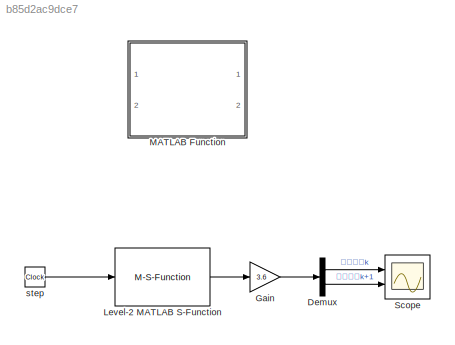
MODEL slx_b85d2ac9dce7
KIND model
CONFIG AbsTol = auto
CONFIG EnableMultiTasking = off
CONFIG FixedStep = 0.01
CONFIG MaxStep = auto
CONFIG MinStep = auto
CONFIG RelTol = 1e-3
CONFIG SampleTimeConstraint = Unconstrained
CONFIG Solver = ode14x
CONFIG SolverName = ode14x
CONFIG StartTime = 0.0
CONFIG StopTime = 500
BLOCK [Demux] Demux
  DisplayOption = bar
  Outputs = 2
  Ports = [1, 2]
BLOCK [Gain] Gain
  Gain = 3.6
  OutDataTypeStr = Inherit: Inherit via internal rule
  ParamDataTypeStr = Inherit: Inherit via internal rule
  SaturateOnIntegerOverflow = off
BLOCK [M-S-Function] Level-2 MATLAB S-Function
  FunctionName = msfun_test
  Ports = [1, 1]
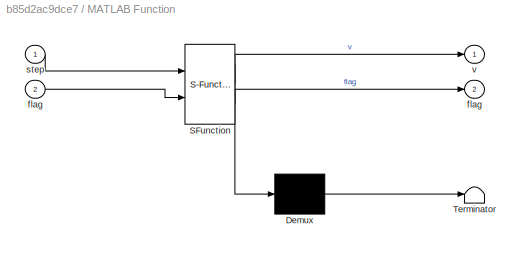
BLOCK [SubSystem] MATLAB Function
  Commented = on
  ErrorFcn = Stateflow.Translate.translate
  PermitHierarchicalResolution = ExplicitOnly
  Ports = [2, 2]
  RequestExecContextInheritance = off
  SFBlockType = MATLAB Function
  TreatAsAtomicUnit = on
BLOCK [Demux] MATLAB Function/ Demux 
  Outputs = 1
  Ports = [1, 1]
BLOCK [S-Function] MATLAB Function/ SFunction 
  EnableBusSupport = on
  FunctionName = sf_sfun
  PortCounts = [2 3]
  Ports = [2, 3]
  SFcnIsStateOwnerBlock = off
  SFunctionDeploymentMode = off
  Tag = Stateflow S-Function 2
BLOCK [Terminator] MATLAB Function/ Terminator 
BLOCK [Outport] MATLAB Function/flag
  IconDisplay = Port number
  Port = 2
BLOCK [Inport] MATLAB Function/flag 
  IconDisplay = Port number
  Port = 2
BLOCK [Inport] MATLAB Function/step
  IconDisplay = Port number
BLOCK [Outport] MATLAB Function/v
  IconDisplay = Port number
BLOCK [Scope] Scope
  Floating = off
  NumInputPorts = 2
  Ports = [2]
  ScopeSpecificationString = Simulink.scopes.TimeScopeBlockCfg('CurrentConfiguration', extmgr.ConfigurationSet(extmgr.Configuration('Core','General UI',true,'FigureColor',[1 1 1]),extmgr.Configuration('Core','Source UI',true),extmgr.Configuration('Sources','WiredSimulink',true),extmgr.Configuration('Visuals','Time Domain',true,'SerializedDisplays',{struct('MinYLimReal','-5.06786','MaxYLimReal','45.61075','YLabelReal','','MinY...<+1625ch>
BLOCK [Clock] step
LINE Demux:1 -> Scope:1
LINE Demux:2 -> Scope:2
LINE Gain:1 -> Demux:1
LINE Level-2 MATLAB S-Function:1 -> Gain:1
LINE step:1 -> Level-2 MATLAB S-Function:1
CHART MATLAB Function states=1 transitions=1
  STATE_LABEL 'eML_blk_kernel()'
  STATE_LABEL 'SCRIPT:\nfunction [v,flag] = fcn(step,flag)\n    scenarioPath=\'<path>';\n    traci.start([\'sumo-gui -c \' \'"\' scenarioPath \'"\' \' --start\']);\nif flag==1\n    step=step;\n    v=traci.vehicle.getSpeed(\'vehicle_0\');\n    traci.simulation.step()\nelse\n    step=step;\n    v=traci.vehicle.getSpeed(\'vehicle_0\');\n    traci.simulation.step()...<+14ch>'
note: 1 file-system path scrubbed to <path> (not preserved elsewhere — flat text is the only slx artifact)
